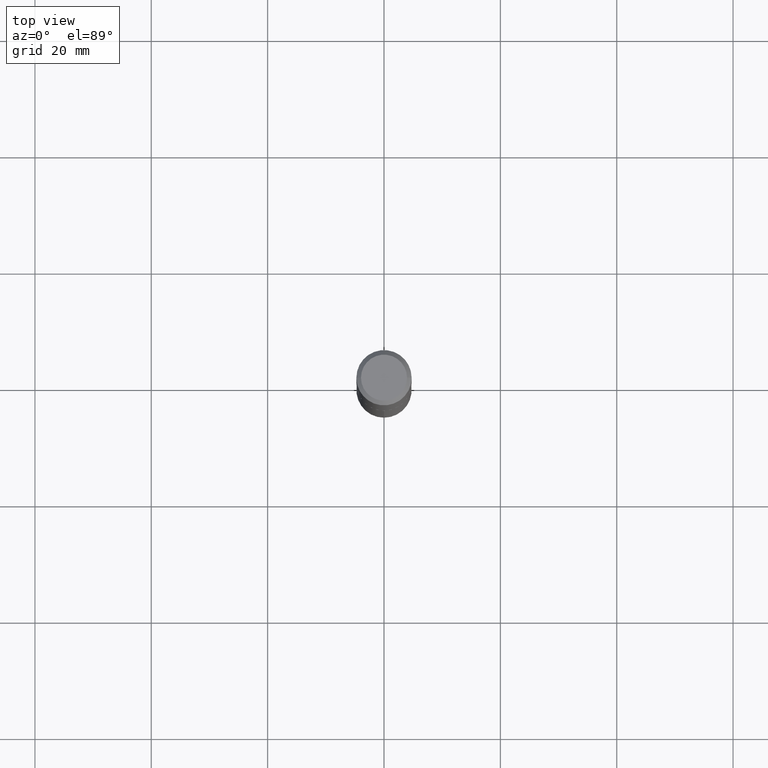
[diagram: clean part render]
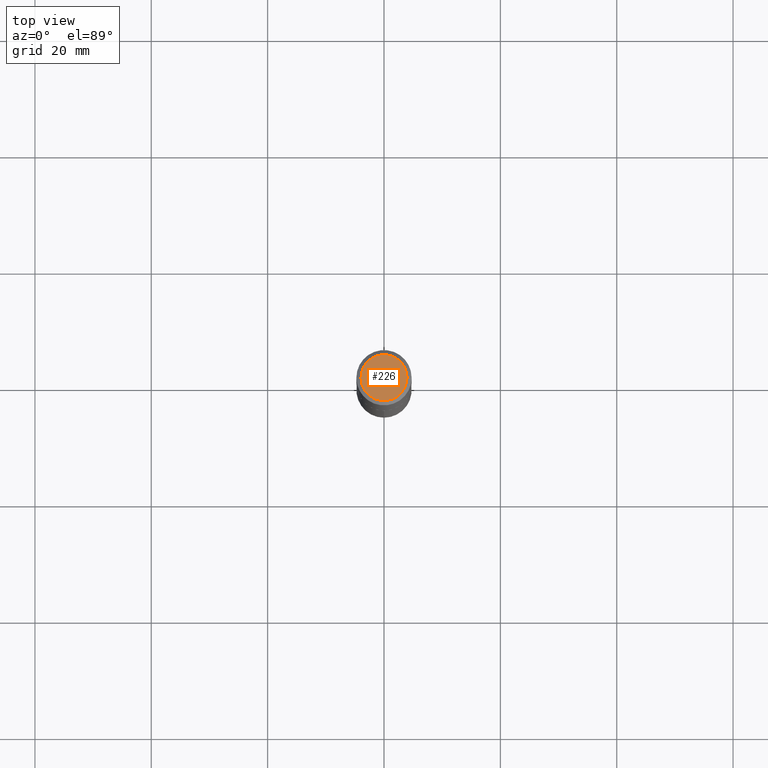
[diagram: same view with one face highlighted and labeled with its STEP entity id]
A machine part, top view. The second image highlights one B-rep face of the part: STEP entity #226.
In plain terms, the highlighted planar face has unit normal (0, -0, -1).
Its self-contained STEP definition (entity closure, byte-faithful):
#58 = EDGE_CURVE ( 'NONE', #374, #297, #65, .T. ) ;
#63 = DIRECTION ( 'NONE',  ( 2.438088387897960049E-29, -3.491481338843145188E-15, -1.000000000000000000 ) ) ;
#65 = CIRCLE ( 'NONE', #180, 0.1557499999999999996 ) ;
#92 = DIRECTION ( 'NONE',  ( -1.000000000000000000, 6.982962677686265922E-15, -4.876176775795935793E-29 ) ) ;
#121 = ORIENTED_EDGE ( 'NONE', *, *, #221, .T. ) ;
#158 = CARTESIAN_POINT ( 'NONE',  ( 0.1557499999999999996, -1.230272240287521027E-15, 1.206277097168247979E-18 ) ) ;
#180 = AXIS2_PLACEMENT_3D ( 'NONE', #241, #381, #263 ) ;
#216 = CARTESIAN_POINT ( 'NONE',  ( -1.474956506360344439E-47, 2.105846987104261168E-33, 6.031385485800719294E-19 ) ) ;
#221 = EDGE_CURVE ( 'NONE', #297, #374, #339, .T. ) ;
#224 = EDGE_LOOP ( 'NONE', ( #121, #314 ) ) ;
#226 = ADVANCED_FACE ( 'NONE', ( #328 ), #301, .F. ) ;
#241 = CARTESIAN_POINT ( 'NONE',  ( -2.949913012720688878E-47, 4.211693974208522336E-33, 1.206277097160143859E-18 ) ) ;
#248 = DIRECTION ( 'NONE',  ( -2.445468806185136597E-29, 3.491481338843145583E-15, 1.000000000000000000 ) ) ;
#263 = DIRECTION ( 'NONE',  ( 1.000000000000000000, -6.982962677686265922E-15, 4.876226489925215677E-29 ) ) ;
#295 = DIRECTION ( 'NONE',  ( 1.000000000000000000, -6.982962677686265922E-15, 4.876226489925215677E-29 ) ) ;
#297 = VERTEX_POINT ( 'NONE', #305 ) ;
#299 = CARTESIAN_POINT ( 'NONE',  ( -2.949913012720688878E-47, 4.211693974208522336E-33, 1.206277097160143859E-18 ) ) ;
#301 = PLANE ( 'NONE',  #360 ) ;
#303 = AXIS2_PLACEMENT_3D ( 'NONE', #299, #248, #295 ) ;
#305 = CARTESIAN_POINT ( 'NONE',  ( -0.1557499999999999996, 1.142150832969059533E-15, 1.206277097152347309E-18 ) ) ;
#314 = ORIENTED_EDGE ( 'NONE', *, *, #58, .T. ) ;
#328 = FACE_OUTER_BOUND ( 'NONE', #224, .T. ) ;
#339 = CIRCLE ( 'NONE', #303, 0.1557499999999999996 ) ;
#360 = AXIS2_PLACEMENT_3D ( 'NONE', #216, #63, #92 ) ;
#374 = VERTEX_POINT ( 'NONE', #158 ) ;
#381 = DIRECTION ( 'NONE',  ( -2.445468806185136597E-29, 3.491481338843145583E-15, 1.000000000000000000 ) ) ;